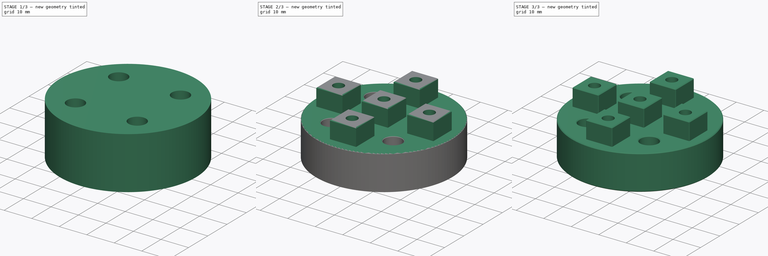
[diagram: build sequence overview — one tinted view per stage of 3, left to right]
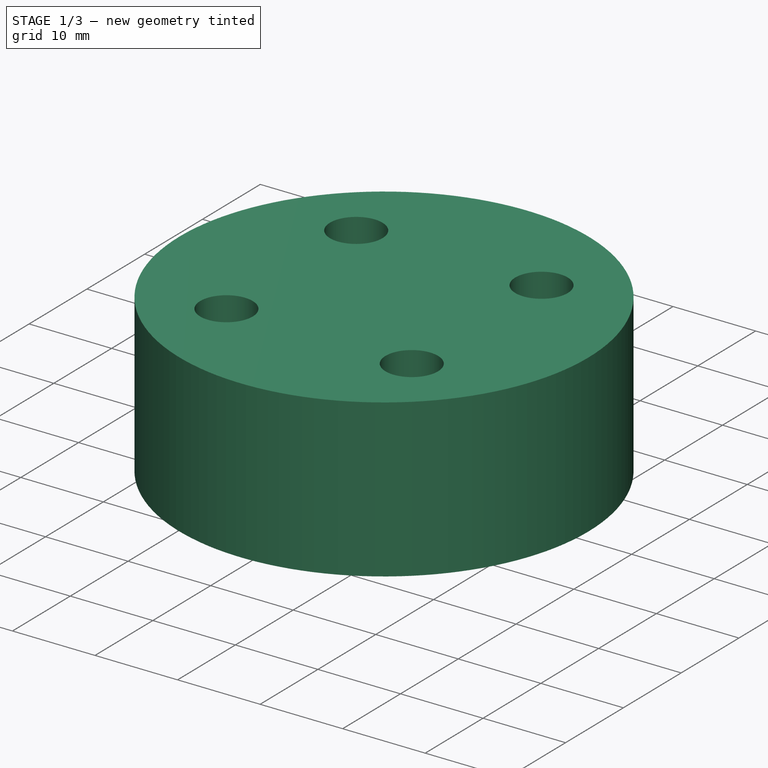
[diagram: stage 1 of 3 — iso view after this stage's code; geometry added in this stage tinted green]
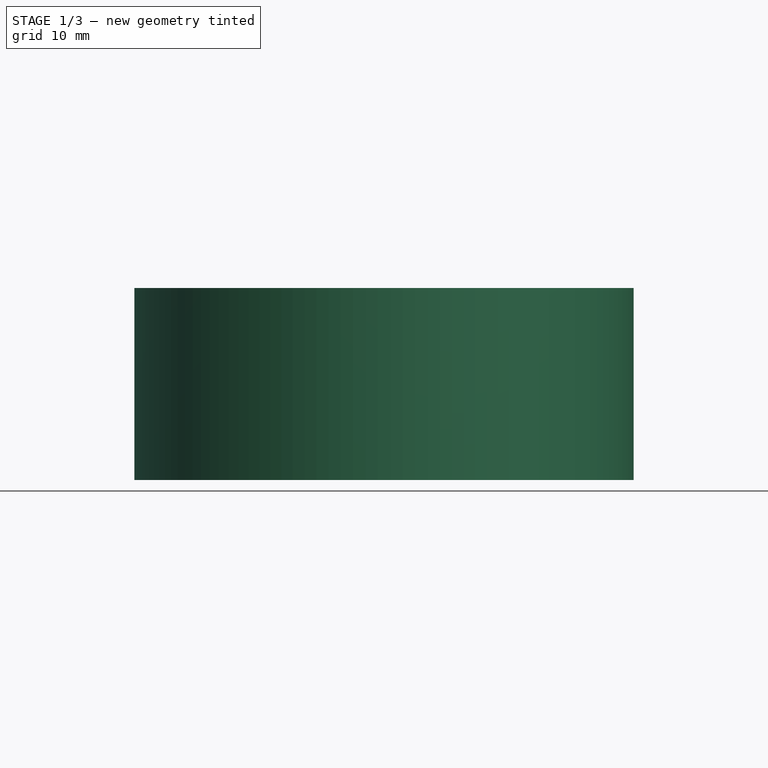
[diagram: stage 1 of 3 — front view after this stage's code; geometry added in this stage tinted green]
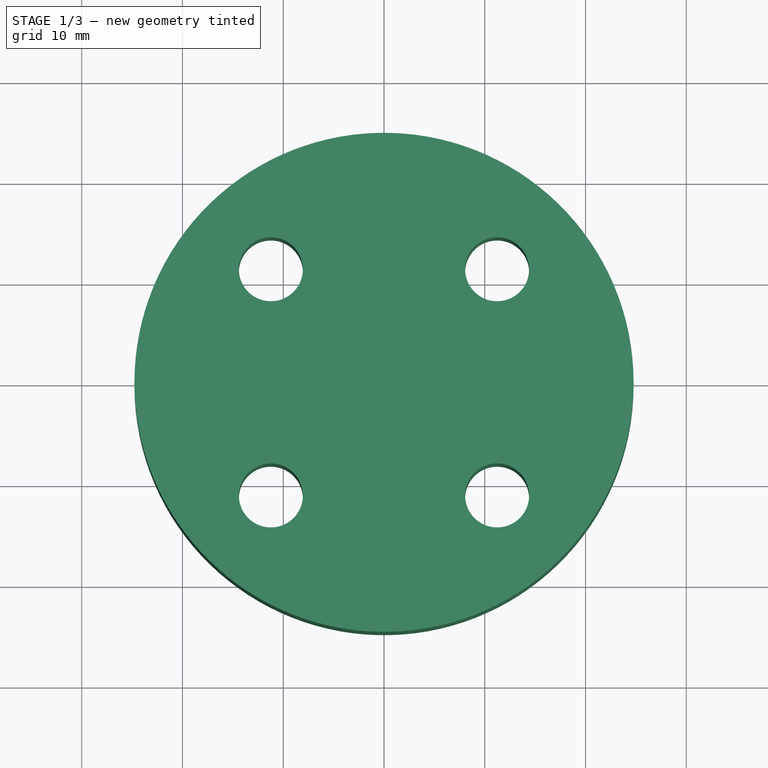
[diagram: stage 1 of 3 — top view after this stage's code; geometry added in this stage tinted green]
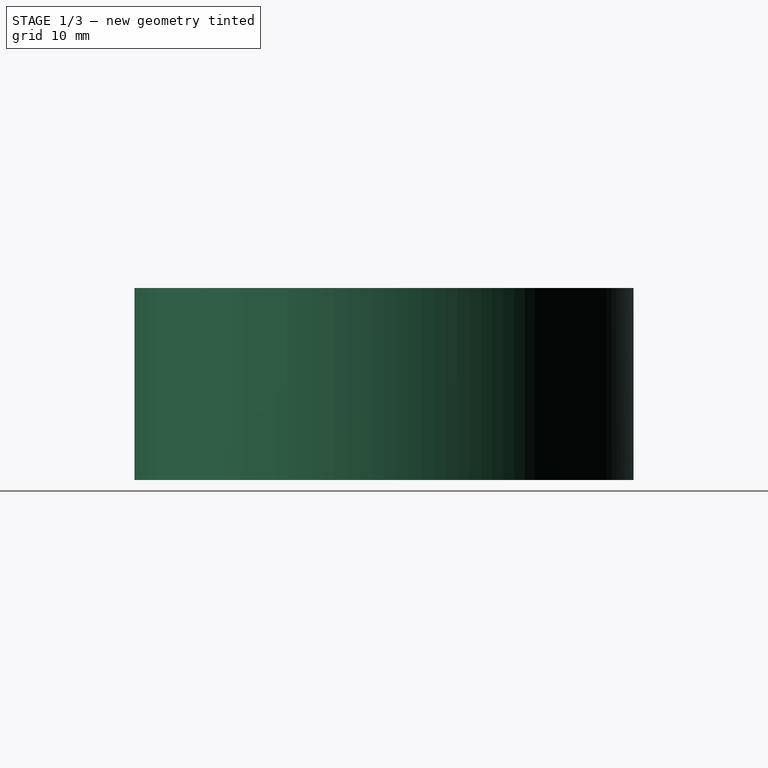
[diagram: stage 1 of 3 — right view after this stage's code; geometry added in this stage tinted green]
FCSTD DOCUMENT  (FreeCAD 0.20R26303 (Git))
Label: TITAN-6M
License: All rights reserved
LicenseURL: http://en.wikipedia.org/wiki/All_rights_reserved
objects: Sketcher::SketchObject×3, PartDesign::Pocket×2, PartDesign::Chamfer×2, PartDesign::AdditiveCylinder×1, PartDesign::Hole×1, PartDesign::Fillet×1, PartDesign::Body×1
note: 18 computed .brp shape members not serialized (recipe doc carries the construction recipe); baked Part::Feature solids carry a one-line shape summary decoded from their .brp

FEATURE [PartDesign::AdditiveCylinder] Cylinder
  Angle = 360
  AttacherType = Attacher::AttachEngine3D
  FirstAngle = 0
  Height = 19.05
  Radius = 24.765
  SecondAngle = 0
  expr: Radius = 1.95" / 2
FEATURE [Sketcher::SketchObject] Sketch
  FullyConstrained = true
  MapMode = 5
  Placement = pos=(0,0,19.05) rot=(0,0,1;0rad)
  Support = -> [Cylinder]
  sketch-geometry (9):
    g0: Circle CenterX=0 CenterY=0 CenterZ=0 NormalX=0 NormalY=0 NormalZ=1 AngleXU=0 Radius=15.875
    g1: LineSegment StartX=-11.2253 StartY=-11.2253 StartZ=0 EndX=11.2253 EndY=-11.2253 EndZ=0
    g2: LineSegment StartX=11.2253 StartY=-11.2253 StartZ=0 EndX=11.2253 EndY=11.2253 EndZ=0
    g3: LineSegment StartX=11.2253 StartY=11.2253 StartZ=0 EndX=-11.2253 EndY=11.2253 EndZ=0
    g4: LineSegment StartX=-11.2253 StartY=11.2253 StartZ=0 EndX=-11.2253 EndY=-11.2253 EndZ=0
    g5: Circle CenterX=11.2253 CenterY=11.2253 CenterZ=0 NormalX=0 NormalY=0 NormalZ=1 AngleXU=0 Radius=3.175
    g6: Circle CenterX=-11.2253 CenterY=11.2253 CenterZ=0 NormalX=0 NormalY=0 NormalZ=1 AngleXU=0 Radius=3.175
    g7: Circle CenterX=-11.2253 CenterY=-11.2253 CenterZ=0 NormalX=0 NormalY=0 NormalZ=1 AngleXU=0 Radius=3.175
    g8: Circle CenterX=11.2253 CenterY=-11.2253 CenterZ=0 NormalX=0 NormalY=0 NormalZ=1 AngleXU=0 Radius=3.175
  constraints (22):
    c: Coincident(g0,g-1)
    c: Coincident(g1,g2)
    c: Coincident(g2,g3)
    c: Coincident(g3,g4)
    c: Coincident(g4,g1)
    c: Horizontal(g1)
    c: Horizontal(g3)
    c: Vertical(g2)
    c: Vertical(g4)
    c: PointOnObject(g1,g0)
    c: PointOnObject(g2,g0)
    c: PointOnObject(g3,g0)
    c: Diameter(g0) = 31.75
    c: Equal(g2,g1)
    c: Coincident(g5,g2)
    c: Coincident(g6,g3)
    c: Coincident(g7,g1)
    c: Coincident(g8,g1)
    c: Equal(g8,g5)
    c: Equal(g5,g6)
    c: Equal(g6,g7)
    c: Diameter(g6) = 6.35
FEATURE [PartDesign::Pocket] Pocket
  BaseFeature = -> Cylinder
  Length = 19.05
  Length2 = 99.9998
  Profile = -> Sketch
  Type = 0
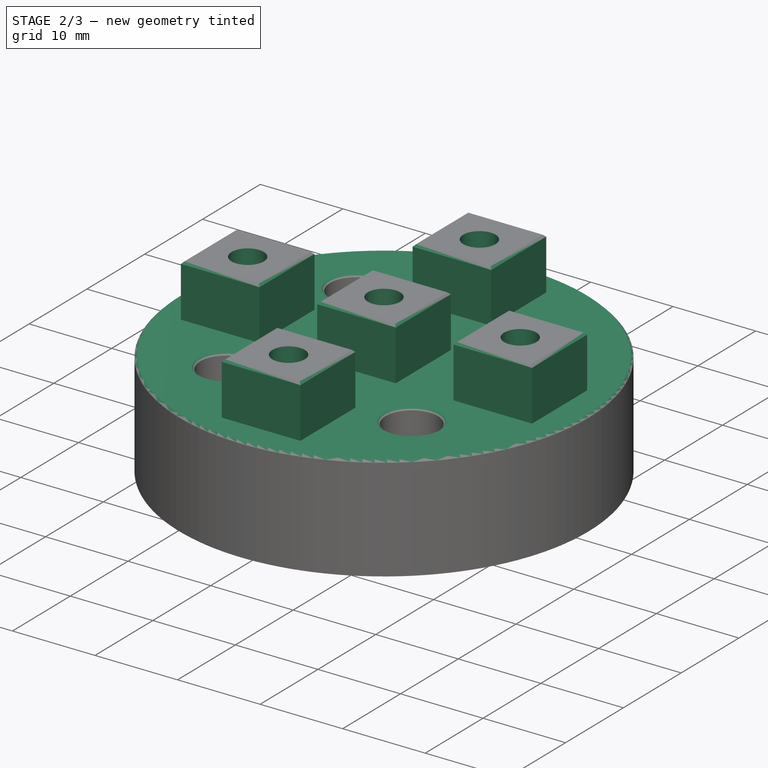
[diagram: stage 2 of 3 — iso view after this stage's code; geometry added in this stage tinted green]
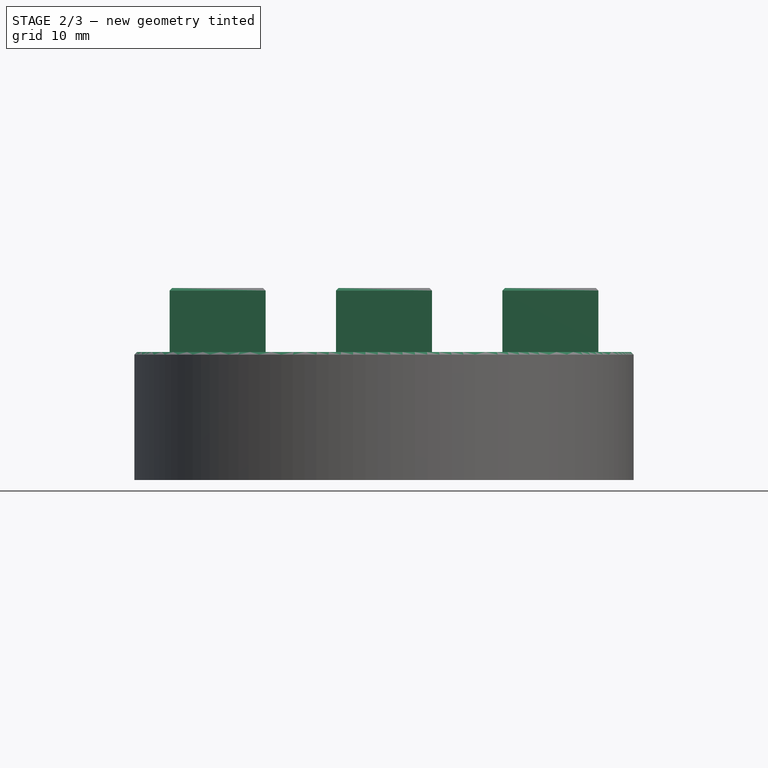
[diagram: stage 2 of 3 — front view after this stage's code; geometry added in this stage tinted green]
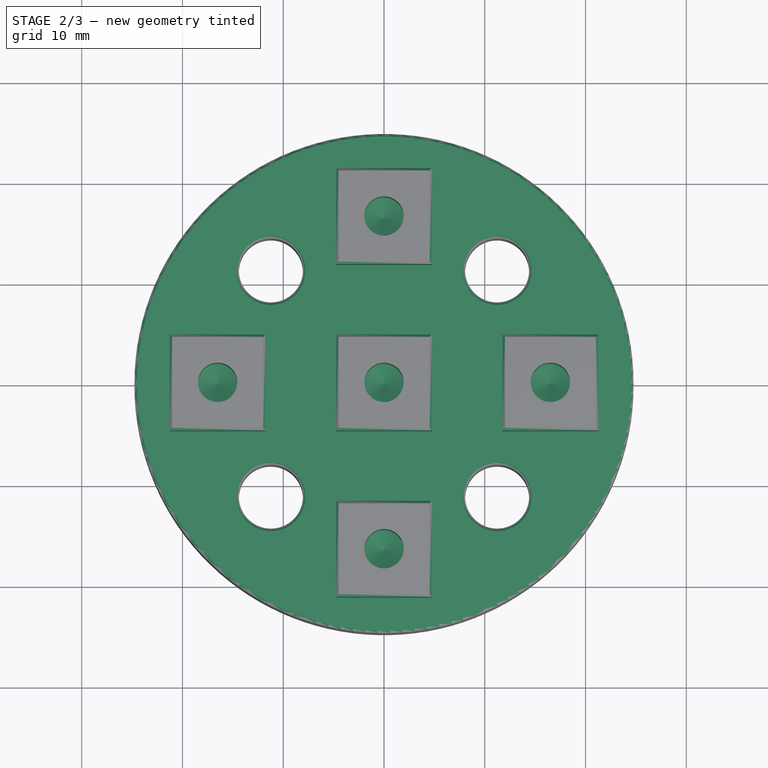
[diagram: stage 2 of 3 — top view after this stage's code; geometry added in this stage tinted green]
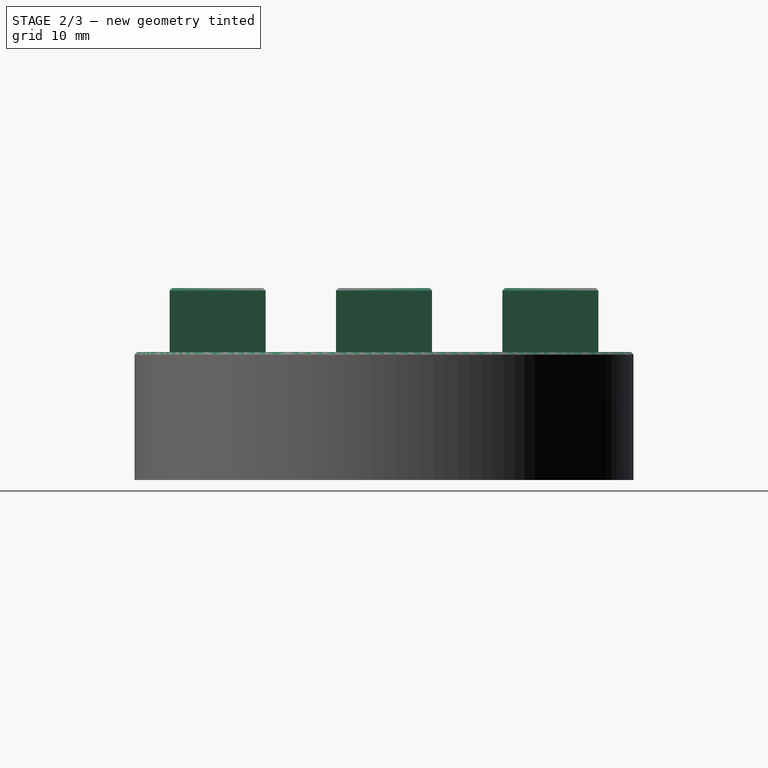
[diagram: stage 2 of 3 — right view after this stage's code; geometry added in this stage tinted green]
FEATURE [Sketcher::SketchObject] Sketch001
  FullyConstrained = true
  MapMode = 5
  Placement = pos=(0,0,19.05) rot=(0,0,1;0rad)
  Support = -> [Pocket]
  sketch-geometry (29):
    g0: LineSegment StartX=-4.7625 StartY=4.7625 StartZ=0 EndX=4.7625 EndY=4.7625 EndZ=0
    g1: LineSegment StartX=4.7625 StartY=4.7625 StartZ=0 EndX=4.7625 EndY=-4.7625 EndZ=0
    g2: LineSegment StartX=4.7625 StartY=-4.7625 StartZ=0 EndX=-4.7625 EndY=-4.7625 EndZ=0
    g3: LineSegment StartX=-4.7625 StartY=-4.7625 StartZ=0 EndX=-4.7625 EndY=4.7625 EndZ=0
    g4: LineSegment StartX=-4.7625 StartY=21.2725 StartZ=0 EndX=4.7625 EndY=21.2725 EndZ=0
    g5: LineSegment StartX=4.7625 StartY=21.2725 StartZ=0 EndX=4.7625 EndY=11.7475 EndZ=0
    g6: LineSegment StartX=4.7625 StartY=11.7475 StartZ=0 EndX=-4.7625 EndY=11.7475 EndZ=0
    g7: LineSegment StartX=-4.7625 StartY=11.7475 StartZ=0 EndX=-4.7625 EndY=21.2725 EndZ=0
    g8: LineSegment StartX=-21.2725 StartY=4.7625 StartZ=0 EndX=-11.7475 EndY=4.7625 EndZ=0
    g9: LineSegment StartX=-11.7475 StartY=4.7625 StartZ=0 EndX=-11.7475 EndY=-4.7625 EndZ=0
    g10: LineSegment StartX=-11.7475 StartY=-4.7625 StartZ=0 EndX=-21.2725 EndY=-4.7625 EndZ=0
    g11: LineSegment StartX=-21.2725 StartY=-4.7625 StartZ=0 EndX=-21.2725 EndY=4.7625 EndZ=0
    g12: LineSegment StartX=-4.7625 StartY=-11.7475 StartZ=0 EndX=4.7625 EndY=-11.7475 EndZ=0
    g13: LineSegment StartX=4.7625 StartY=-11.7475 StartZ=0 EndX=4.7625 EndY=-21.2725 EndZ=0
    g14: LineSegment StartX=4.7625 StartY=-21.2725 StartZ=0 EndX=-4.7625 EndY=-21.2725 EndZ=0
    g15: LineSegment StartX=-4.7625 StartY=-21.2725 StartZ=0 EndX=-4.7625 EndY=-11.7475 EndZ=0
    g16: LineSegment StartX=11.7475 StartY=4.7625 StartZ=0 EndX=21.2725 EndY=4.7625 EndZ=0
    g17: LineSegment StartX=21.2725 StartY=4.7625 StartZ=0 EndX=21.2725 EndY=-4.7625 EndZ=0
    g18: LineSegment StartX=21.2725 StartY=-4.7625 StartZ=0 EndX=11.7475 EndY=-4.7625 EndZ=0
    g19: LineSegment StartX=11.7475 StartY=-4.7625 StartZ=0 EndX=11.7475 EndY=4.7625 EndZ=0
    g20: LineSegment StartX=-11.7475 StartY=4.7625 StartZ=0 EndX=-4.7625 EndY=4.7625 EndZ=0
    g21: LineSegment StartX=-11.7475 StartY=-4.7625 StartZ=0 EndX=-4.7625 EndY=-4.7625 EndZ=0
    g22: LineSegment StartX=4.7625 StartY=-4.7625 StartZ=0 EndX=11.7475 EndY=-4.7625 EndZ=0
    g23: LineSegment StartX=4.7625 StartY=4.7625 StartZ=0 EndX=11.7475 EndY=4.7625 EndZ=0
    g24: LineSegment StartX=-4.7625 StartY=11.7475 StartZ=0 EndX=-4.7625 EndY=4.7625 EndZ=0
    g25: LineSegment StartX=4.7625 StartY=11.7475 StartZ=0 EndX=4.7625 EndY=4.7625 EndZ=0
    g26: LineSegment StartX=4.7625 StartY=-11.7475 StartZ=0 EndX=4.7625 EndY=-4.7625 EndZ=0
    g27: LineSegment StartX=-4.7625 StartY=-11.7475 StartZ=0 EndX=-4.7625 EndY=-4.7625 EndZ=0
    g28: Circle CenterX=0 CenterY=0 CenterZ=0 NormalX=0 NormalY=0 NormalZ=1 AngleXU=0 Radius=25.4
  constraints (77):
    c: Coincident(g0,g1)
    c: Coincident(g1,g2)
    c: Coincident(g2,g3)
    c: Coincident(g3,g0)
    c: Horizontal(g0)
    c: Horizontal(g2)
    c: Vertical(g1)
    c: Vertical(g3)
    c: Coincident(g4,g5)
    c: Coincident(g5,g6)
    c: Coincident(g6,g7)
    c: Coincident(g7,g4)
    c: Horizontal(g4)
    c: Horizontal(g6)
    c: Vertical(g5)
    c: Vertical(g7)
    c: Coincident(g8,g9)
    c: Coincident(g9,g10)
    c: Coincident(g10,g11)
    c: Coincident(g11,g8)
    c: Horizontal(g8)
    c: Horizontal(g10)
    c: Vertical(g9)
    c: Vertical(g11)
    c: Coincident(g12,g13)
    c: Coincident(g13,g14)
    c: Coincident(g14,g15)
    c: Coincident(g15,g12)
    c: Horizontal(g12)
    c: Horizontal(g14)
    c: Vertical(g13)
    c: Vertical(g15)
    c: Coincident(g16,g17)
    c: Coincident(g17,g18)
    c: Coincident(g18,g19)
    c: Coincident(g19,g16)
    c: Horizontal(g16)
    c: Horizontal(g18)
    c: Vertical(g17)
    c: Vertical(g19)
    c: Equal(g1,g2)
    c: Equal(g2,g18)
    c: Equal(g18,g13)
    c: Equal(g13,g10)
    c: Equal(g10,g5)
    c: Coincident(g20,g8)
    c: Coincident(g20,g0)
    c: Coincident(g21,g9)
    c: Coincident(g21,g2)
    c: Coincident(g22,g1)
    c: Coincident(g22,g18)
    c: Horizontal(g22)
    c: Coincident(g23,g0)
    c: Coincident(g23,g16)
    c: Coincident(g24,g6)
    c: Coincident(g24,g0)
    c: Vertical(g24)
    c: Coincident(g25,g5)
    c: Coincident(g25,g0)
    c: Coincident(g26,g12)
    c: Coincident(g26,g1)
    c: Coincident(g27,g12)
    c: Coincident(g27,g2)
    c: Distance(g1) = 9.525
    c: Horizontal(g21)
    c: Vertical(g27)
    c: Vertical(g26)
    c: Horizontal(g23)
    c: Vertical(g25)
    c: Equal(g20,g23)
    c: Equal(g23,g25)
    c: Equal(g25,g26)
    c: Horizontal(g20)
    c: Distance(g25) = 6.985
    c: Symmetric(g1,g0,g-1)
    c: Coincident(g28,g-1)
    c: Diameter(g28) = 50.8
FEATURE [PartDesign::Pocket] Pocket001
  BaseFeature = -> Pocket
  Length = 6.35
  Length2 = 99.9998
  Profile = -> Sketch001
  Type = 0
FEATURE [Sketcher::SketchObject] Sketch002
  FullyConstrained = true
  MapMode = 5
  Placement = pos=(0,0,19.05) rot=(0,0,1;0rad)
  Support = -> [Pocket001]
  expr: Constraints[1] = 0.375" + 0.275"
  sketch-geometry (6):
    g0: Circle CenterX=0 CenterY=0 CenterZ=0 NormalX=0 NormalY=0 NormalZ=1 AngleXU=0 Radius=16.51
    g1: Circle CenterX=0 CenterY=16.51 CenterZ=0 NormalX=0 NormalY=0 NormalZ=1 AngleXU=0 Radius=2.413
    g2: Circle CenterX=16.51 CenterY=0 CenterZ=0 NormalX=0 NormalY=0 NormalZ=1 AngleXU=0 Radius=2.413
    g3: Circle CenterX=-16.51 CenterY=0 CenterZ=0 NormalX=0 NormalY=0 NormalZ=1 AngleXU=0 Radius=2.413
    g4: Circle CenterX=0 CenterY=-16.51 CenterZ=0 NormalX=0 NormalY=0 NormalZ=1 AngleXU=0 Radius=2.413
    g5: Circle CenterX=0 CenterY=0 CenterZ=0 NormalX=0 NormalY=0 NormalZ=1 AngleXU=0 Radius=2.413
  constraints (16):
    c: Coincident(g0,g-1)
    c: Radius(g0) = 16.51
    c: PointOnObject(g1,g-2)
    c: PointOnObject(g2,g-1)
    c: PointOnObject(g3,g-1)
    c: PointOnObject(g4,g-2)
    c: Coincident(g5,g0)
    c: PointOnObject(g4,g0)
    c: PointOnObject(g3,g0)
    c: PointOnObject(g2,g0)
    c: PointOnObject(g1,g0)
    c: Equal(g2,g4)
    c: Equal(g4,g3)
    c: Equal(g3,g5)
    c: Equal(g5,g1)
    c: Diameter(g5) = 4.826
FEATURE [PartDesign::Hole] Hole
  BaseFeature = -> Pocket001
  CustomThreadClearance = 0
  Depth = 6.81037
  DepthType = 0
  Diameter = 3.9
  DrillForDepth = false
  DrillPoint = 1
  DrillPointAngle = 118
  HoleCutCountersinkAngle = 90
  HoleCutCustomValues = false
  HoleCutDepth = 0
  HoleCutDiameter = 6.10108
  HoleCutType = 0
  ModelThread = false
  Profile = -> Sketch002
  Tapered = false
  TaperedAngle = 90
  ThreadClass = 1
  ThreadDepth = 6.81037
  ThreadDepthType = 0
  ThreadDirection = 0
  ThreadFit = 0
  ThreadSize = 7
  ThreadType = 3
  Threaded = true
  UseCustomThreadClearance = false
  expr: Depth = 0.15" + 2.5" / 32 + 0.04"
FEATURE [PartDesign::Chamfer] Chamfer
  Angle = 45
  Base = -> Hole [Edge43,Edge51,Edge3,Edge59,Edge75,Edge67,Edge23,Edge18,Edge8,Edge13,Edge42,Edge38,Edge40,Edge56,Edge54,Edge58,Edge66,Edge64,Edge62,Edge72,Edge70,Edge74,Edge50,Edge46,Edge48]
  BaseFeature = -> Hole
  ChamferType = 0
  FlipDirection = false
  Size = 0.254
  Size2 = 1
  SupportTransform = false
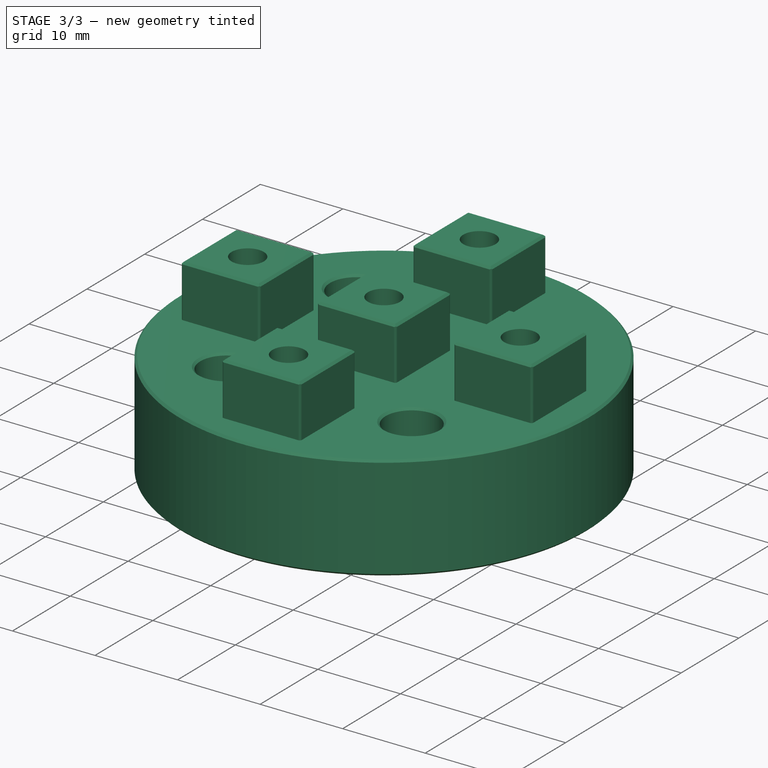
[diagram: stage 3 of 3 — iso view after this stage's code; geometry added in this stage tinted green]
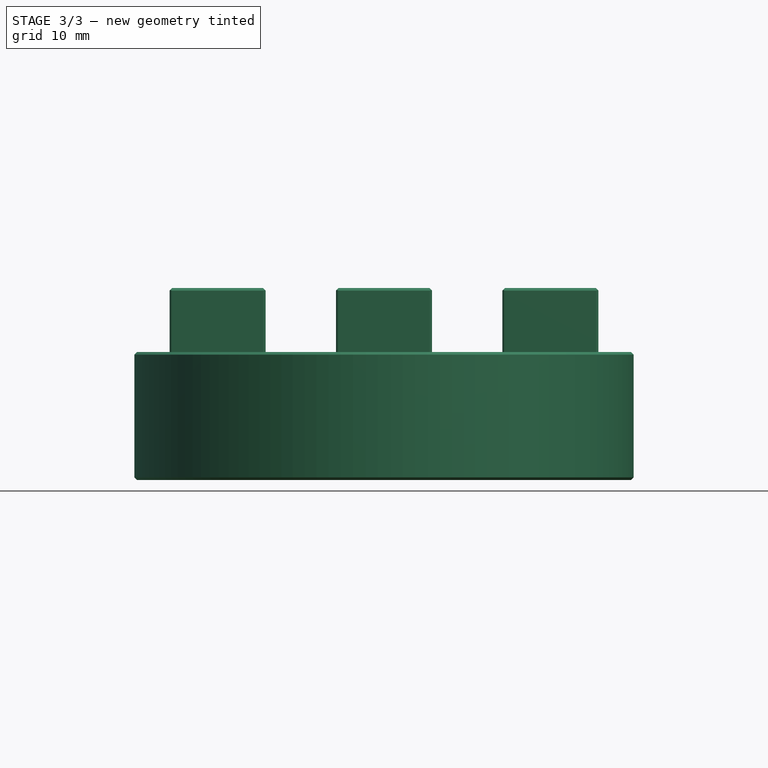
[diagram: stage 3 of 3 — front view after this stage's code; geometry added in this stage tinted green]
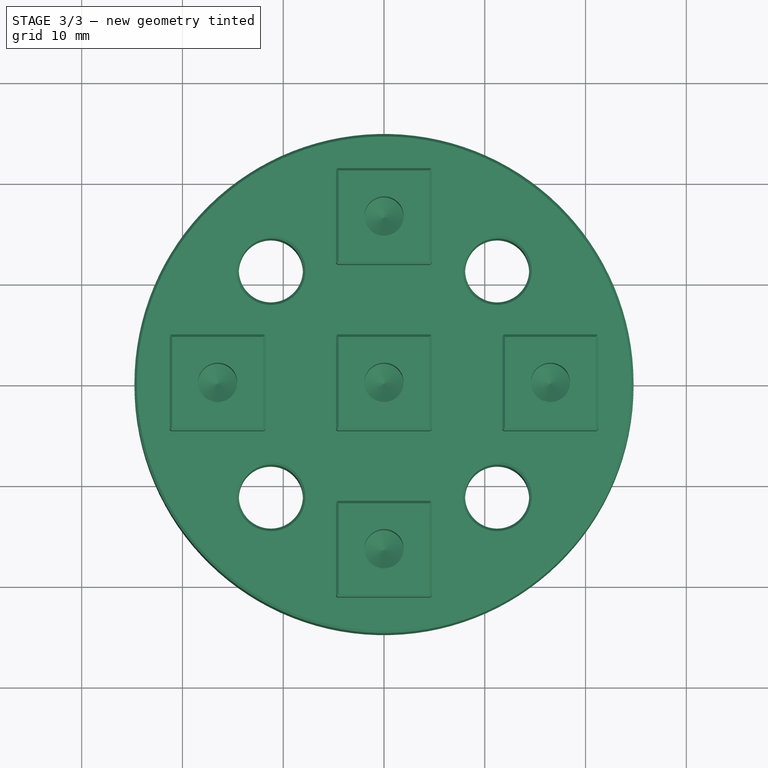
[diagram: stage 3 of 3 — top view after this stage's code; geometry added in this stage tinted green]
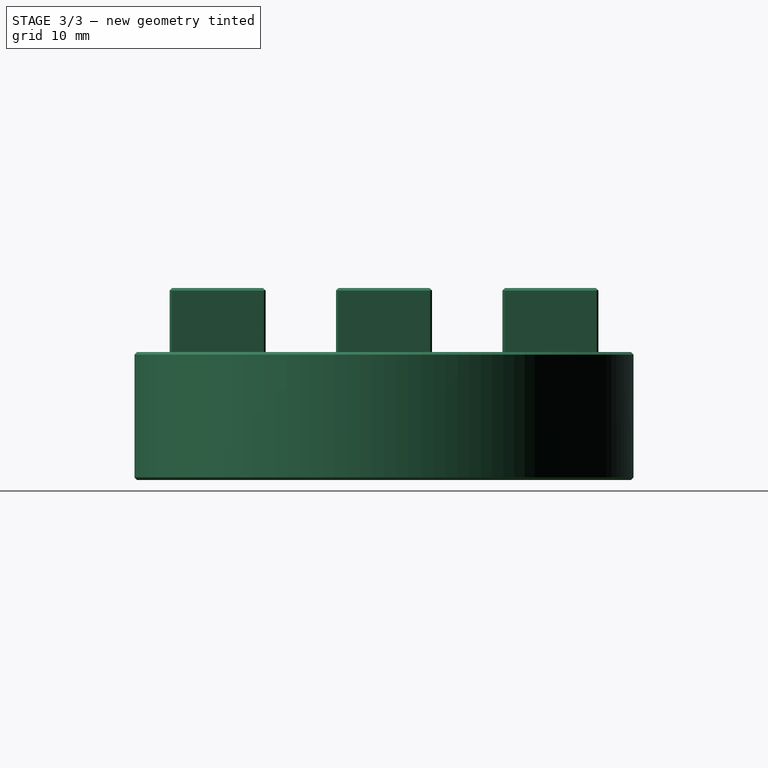
[diagram: stage 3 of 3 — right view after this stage's code; geometry added in this stage tinted green]
FEATURE [PartDesign::Fillet] Fillet
  Base = -> Chamfer [Edge48,Edge44,Edge45,Edge42,Edge53,Edge56,Edge61,Edge64,Edge69,Edge72,Edge77,Edge80,Edge68,Edge66,Edge60,Edge58,Edge52,Edge50,Edge76,Edge74]
  BaseFeature = -> Chamfer
  Radius = 0.254
  SupportTransform = false
FEATURE [PartDesign::Chamfer] Chamfer001
  Angle = 45
  Base = -> Fillet [Edge165,Edge173,Edge167,Edge169,Edge171]
  BaseFeature = -> Fillet
  ChamferType = 0
  FlipDirection = false
  Size = 0.254
  Size2 = 1
  SupportTransform = false
FEATURE [PartDesign::Body] Body
  Group = -> [Cylinder,Sketch,Pocket,Sketch001,Pocket001,Sketch002,Hole,Chamfer,Fillet,Chamfer001]
  Origin = -> Origin
  Tip = -> Chamfer001
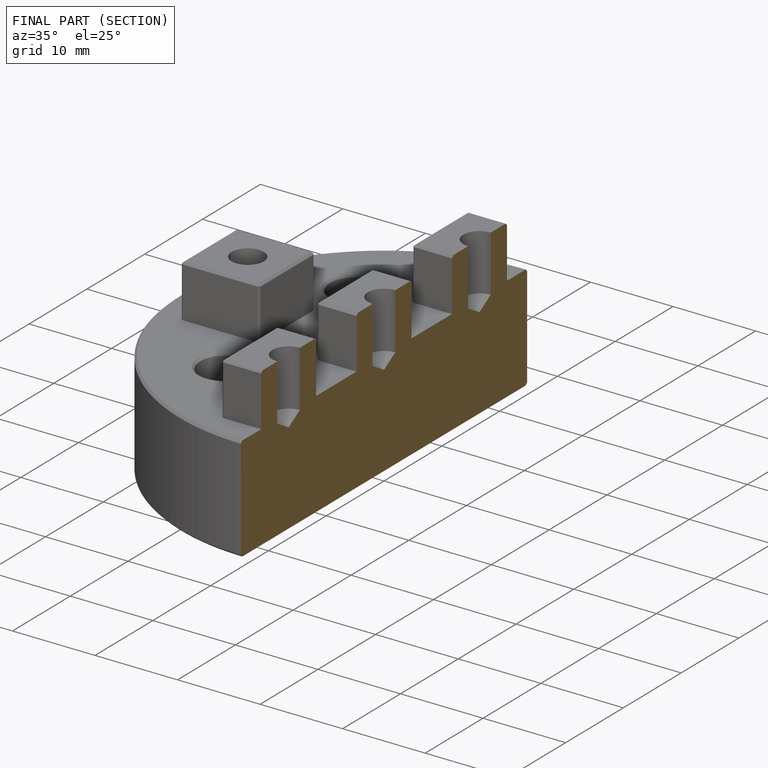
[diagram: finished part — half-section view (interior)]
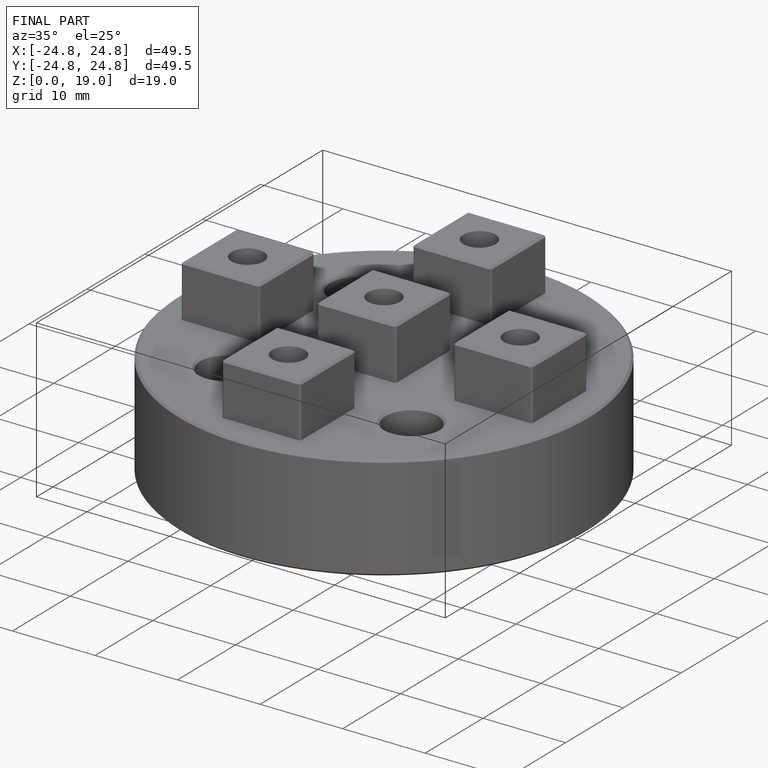
[diagram: finished part — iso view with bounding-box wireframe]
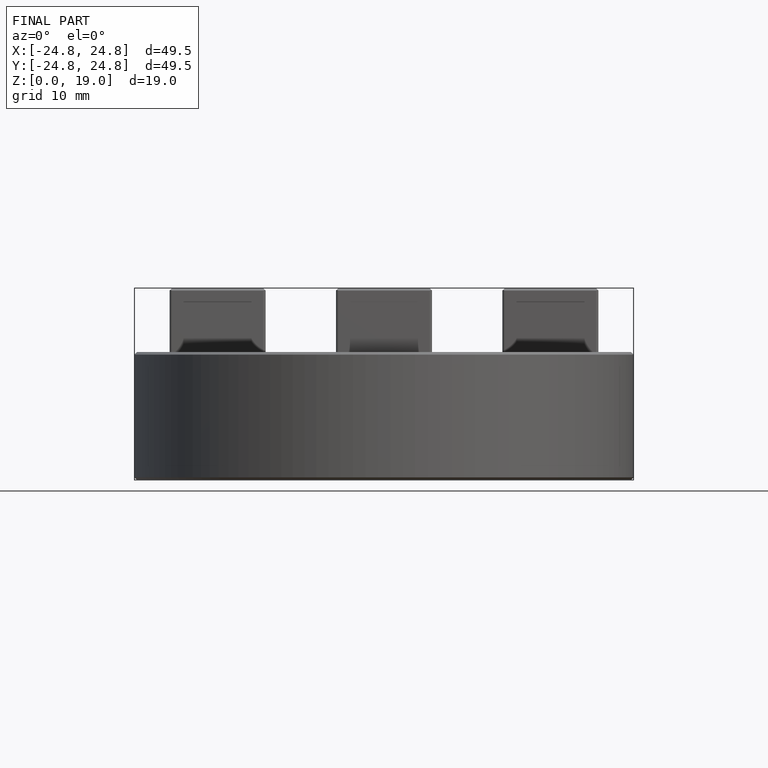
[diagram: finished part — front view with bounding-box wireframe]
